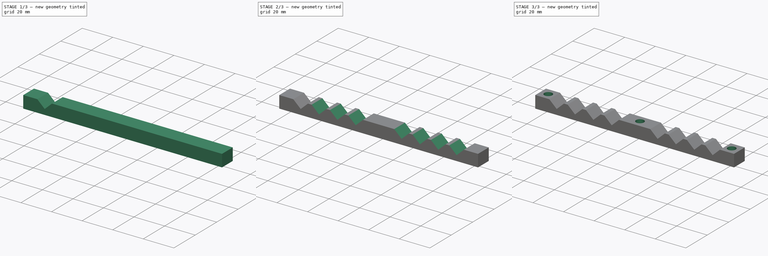
[diagram: build sequence overview — one tinted view per stage of 3, left to right]
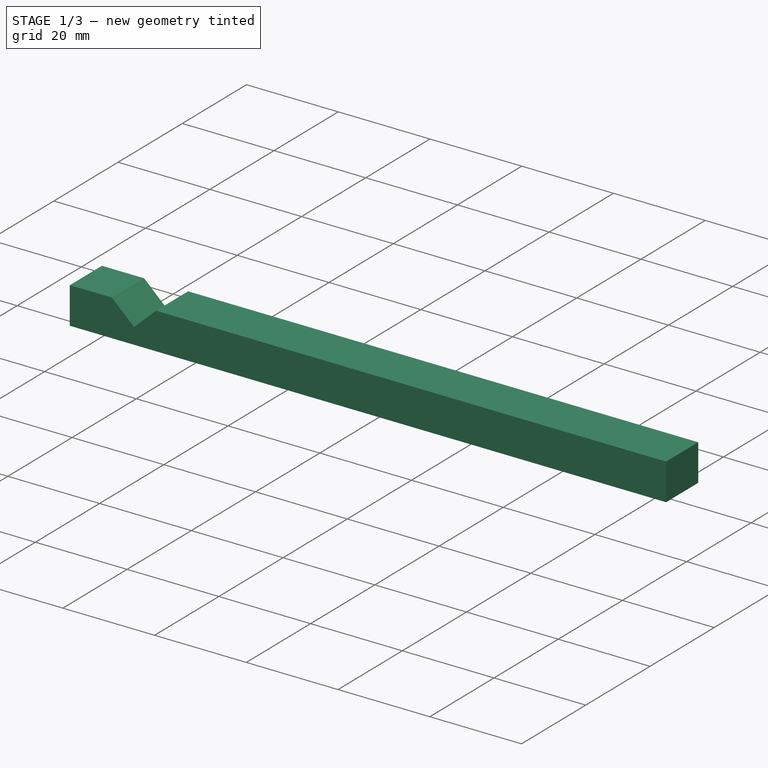
[diagram: stage 1 of 3 — iso view after this stage's code; geometry added in this stage tinted green]
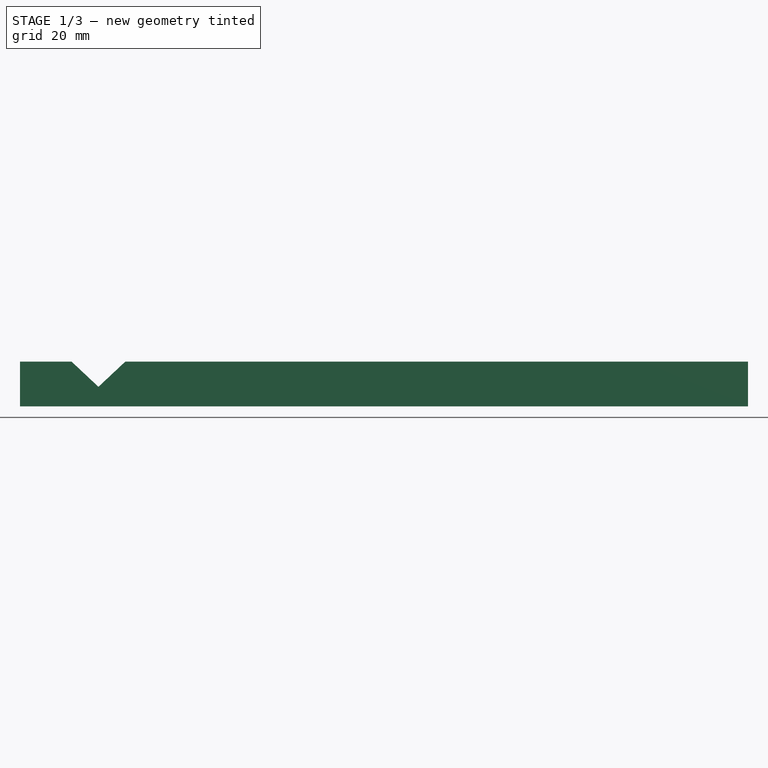
[diagram: stage 1 of 3 — front view after this stage's code; geometry added in this stage tinted green]
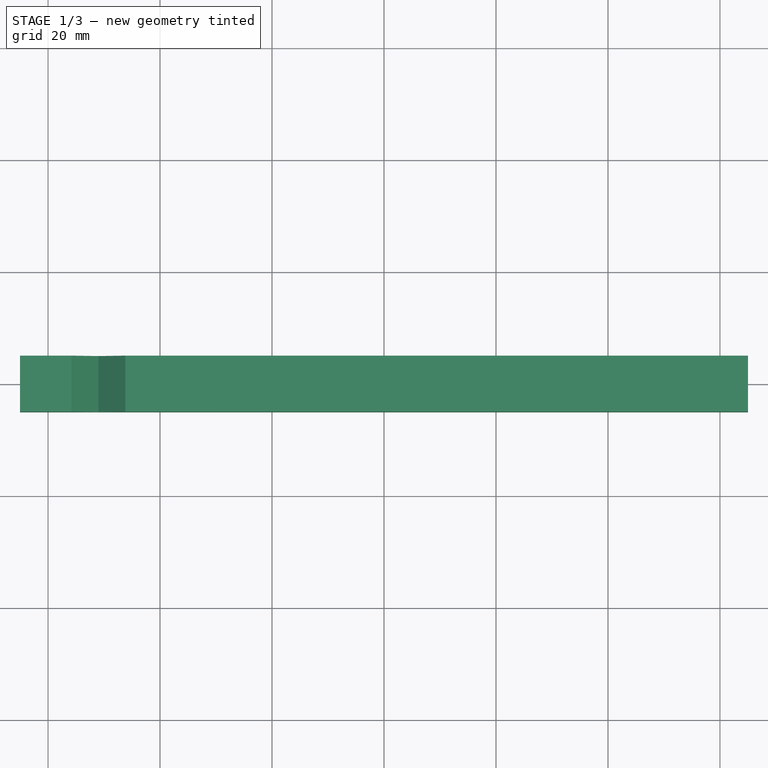
[diagram: stage 1 of 3 — top view after this stage's code; geometry added in this stage tinted green]
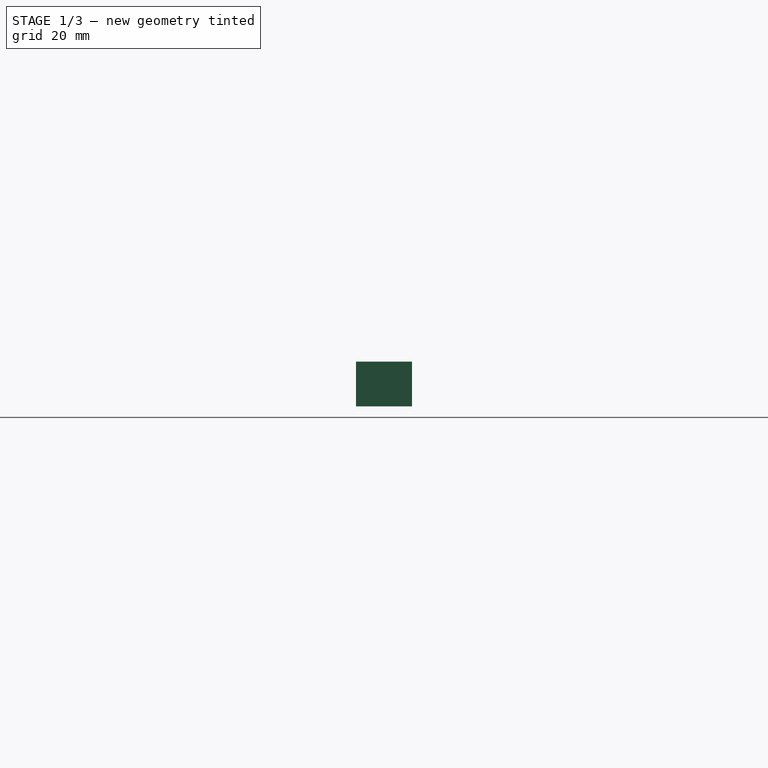
[diagram: stage 1 of 3 — right view after this stage's code; geometry added in this stage tinted green]
FCSTD DOCUMENT
Label: ElectronicEnclosureStrainRelief
objects: Sketcher::SketchObject×3, PartDesign::Pocket×2, PartDesign::LinearPattern×2, PartDesign::Pad×1, PartDesign::Mirrored×1, PartDesign::MultiTransform×1
note: 13 computed .brp shape members not serialized (recipe doc carries the construction recipe); baked Part::Feature solids carry a one-line shape summary decoded from their .brp

FEATURE [Sketcher::SketchObject] Sketch
  sketch-geometry (4):
    g0: LineSegment StartX=-65 StartY=-5 StartZ=0 EndX=65 EndY=-5 EndZ=0
    g1: LineSegment StartX=65 StartY=-5 StartZ=0 EndX=65 EndY=5 EndZ=0
    g2: LineSegment StartX=65 StartY=5 StartZ=0 EndX=-65 EndY=5 EndZ=0
    g3: LineSegment StartX=-65 StartY=5 StartZ=0 EndX=-65 EndY=-5 EndZ=0
  constraints (12):
    c: Coincident(g0,g1)
    c: Coincident(g1,g2)
    c: Coincident(g2,g3)
    c: Coincident(g3,g0)
    c: Horizontal(g0)
    c: Horizontal(g2)
    c: Vertical(g1)
    c: Vertical(g3)
    c: Symmetric(g2,g1,g-2)
    c: DistanceX(g2) = -130
    c: DistanceY(g1) = 10
    c: Symmetric(g0,g2,g-1)
FEATURE [PartDesign::Pad] Pad
  Length = 8
  Length2 = 100
  Sketch = -> Sketch
  Type = 0
FEATURE [Sketcher::SketchObject] Sketch001
  ExternalGeometry = -> [Pad]
  Placement = pos=(0,-5,0) rot=(1,0,0;1.5708rad)
  Support = -> Pad [Face1]
  sketch-geometry (3):
    g0: LineSegment StartX=-55.8 StartY=8 StartZ=0 EndX=-51 EndY=3.5 EndZ=0
    g1: LineSegment StartX=-51 StartY=3.5 StartZ=0 EndX=-46.2 EndY=8 EndZ=0
    g2: LineSegment StartX=-46.2 StartY=8 StartZ=0 EndX=-55.8 EndY=8 EndZ=0
  constraints (9):
    c: Coincident(g0,g1)
    c: Coincident(g1,g2)
    c: Coincident(g2,g0)
    c: Horizontal(g2)
    c: Equal(g0,g1)
    c: DistanceX(g2) = -9.6
    c: DistanceY(g0) = -4.5
    c: DistanceX(g0) = -51
    c: PointOnObject(g-3,g2)
FEATURE [PartDesign::Pocket] Pocket
  Length = 5
  Sketch = -> Sketch001
  Type = 1
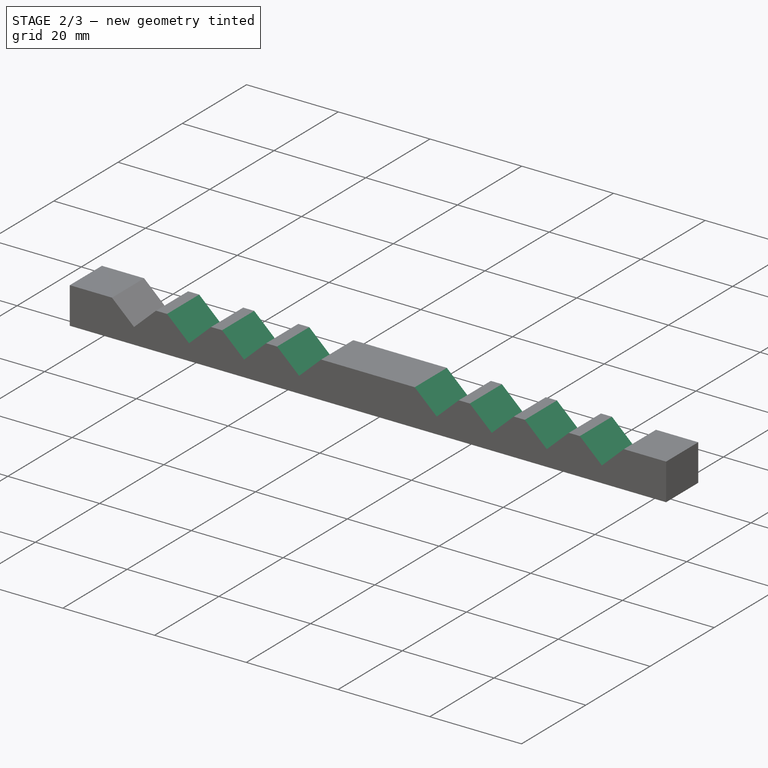
[diagram: stage 2 of 3 — iso view after this stage's code; geometry added in this stage tinted green]
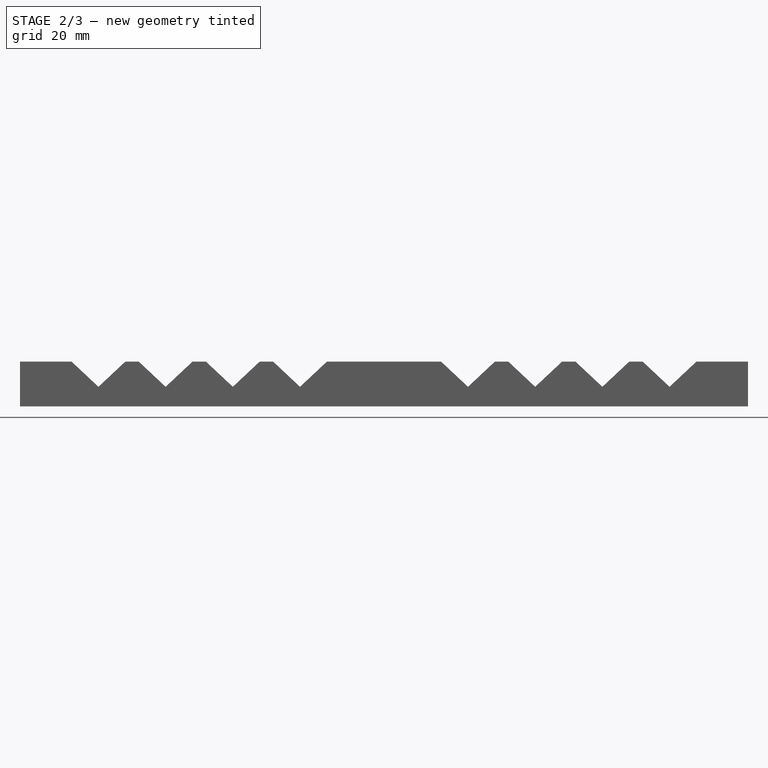
[diagram: stage 2 of 3 — front view after this stage's code; geometry added in this stage tinted green]
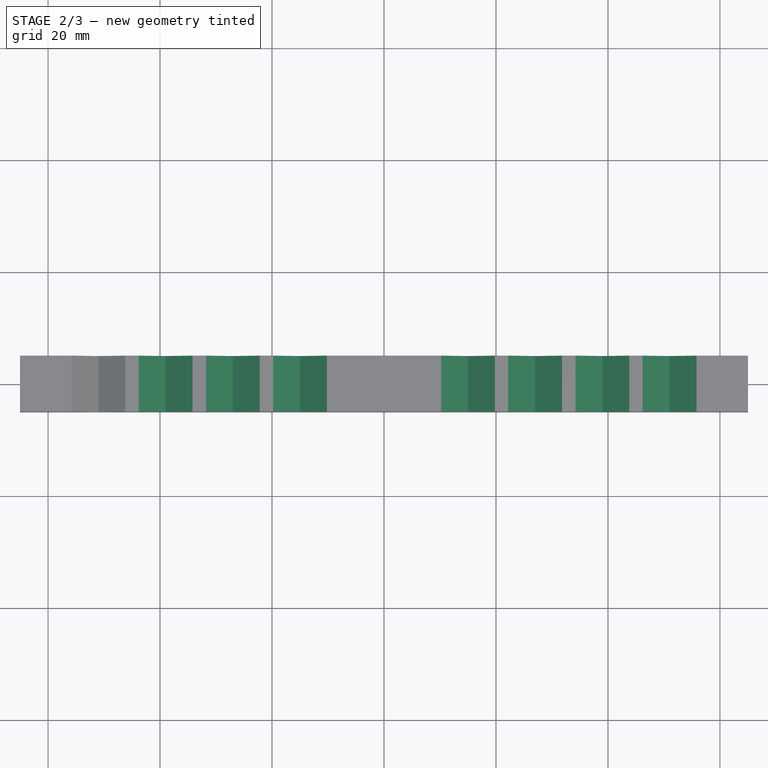
[diagram: stage 2 of 3 — top view after this stage's code; geometry added in this stage tinted green]
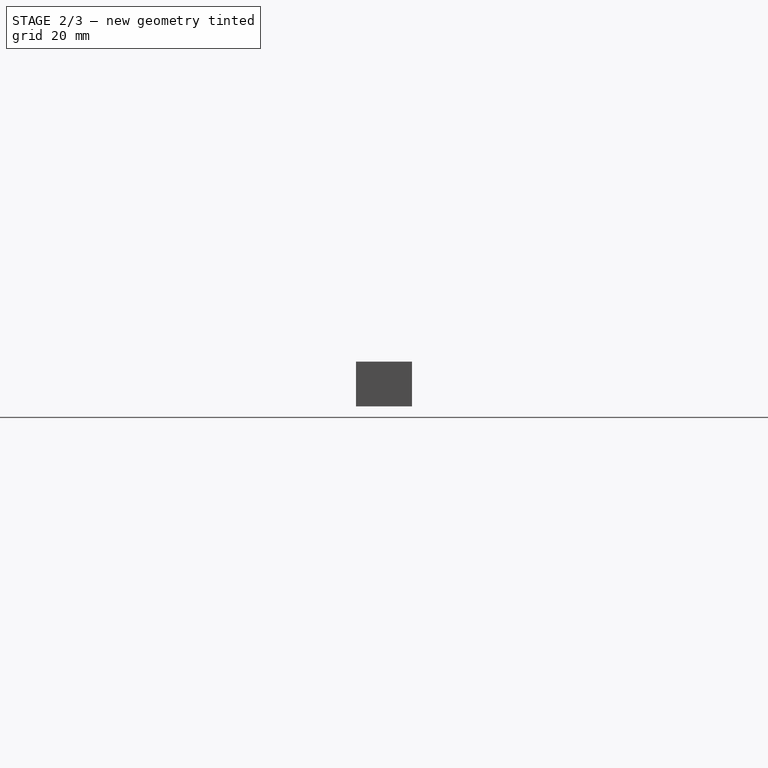
[diagram: stage 2 of 3 — right view after this stage's code; geometry added in this stage tinted green]
FEATURE [PartDesign::LinearPattern] LinearPattern
  Length = 36
  Occurrences = 4
  StdDirection = X
FEATURE [PartDesign::Mirrored] Mirrored
  StdMirrorPlane = YZ
FEATURE [PartDesign::MultiTransform] MultiTransform
  Originals = -> [Pocket]
  Transformations = -> [LinearPattern,Mirrored]
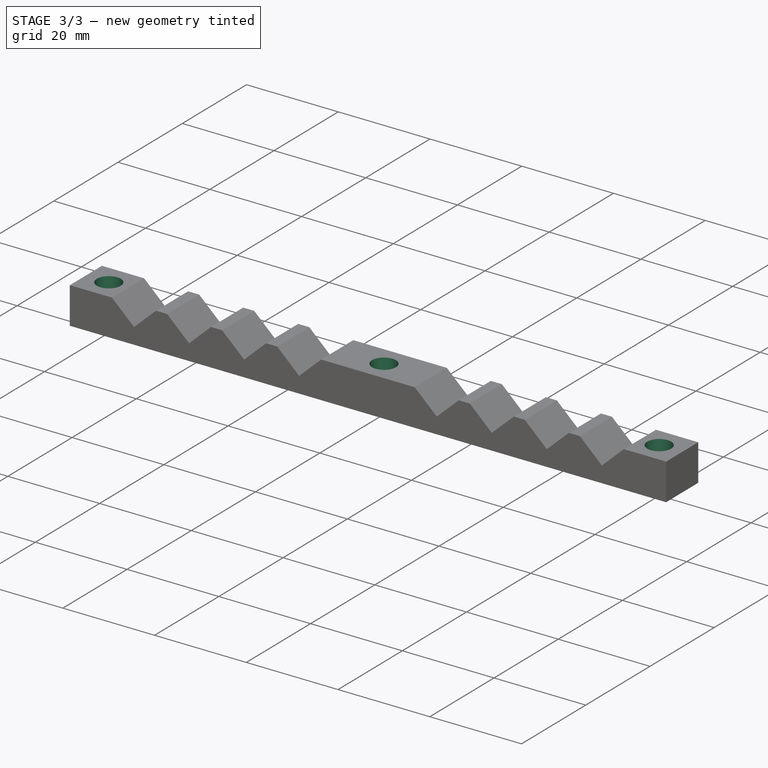
[diagram: stage 3 of 3 — iso view after this stage's code; geometry added in this stage tinted green]
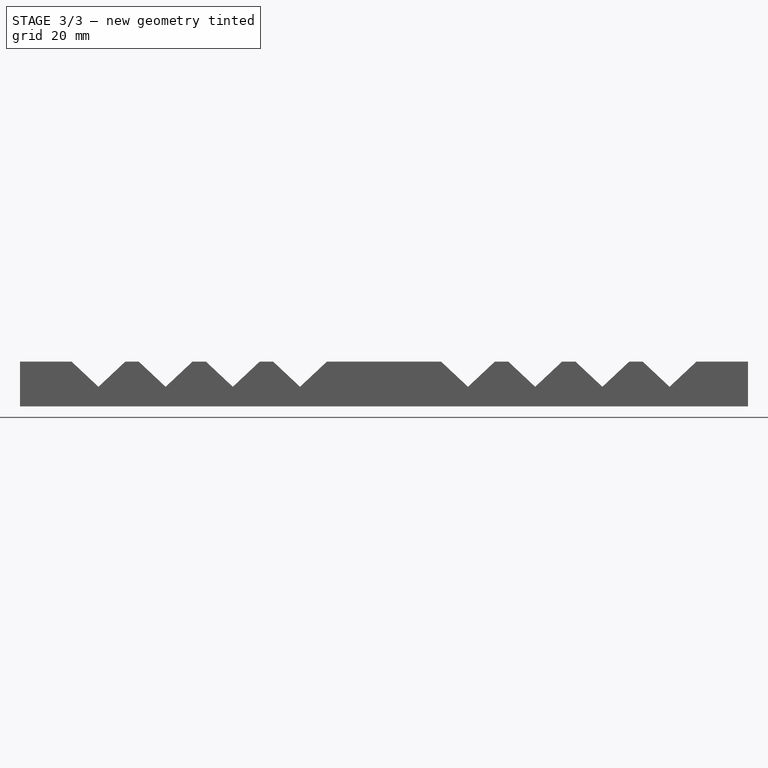
[diagram: stage 3 of 3 — front view after this stage's code; geometry added in this stage tinted green]
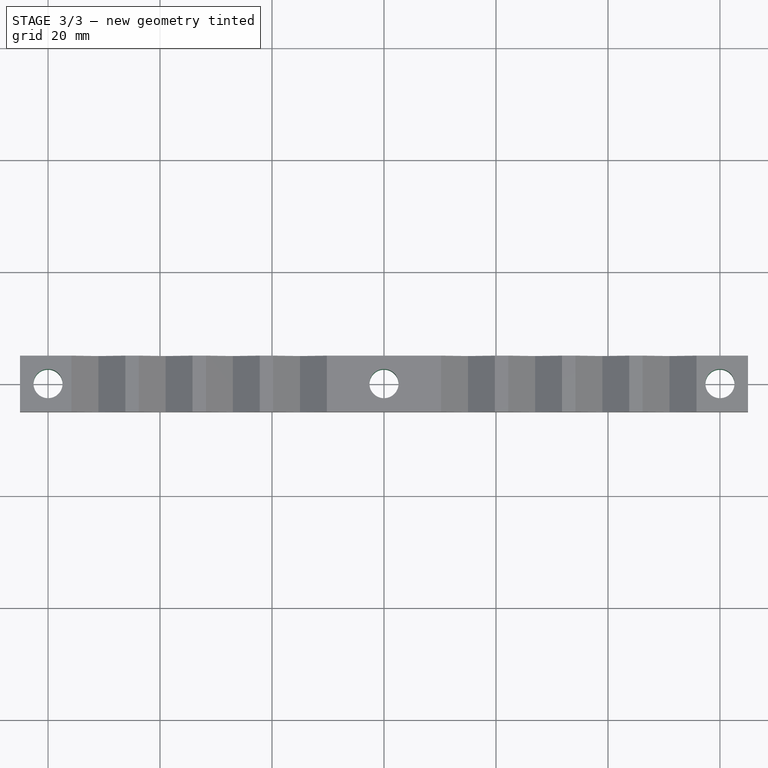
[diagram: stage 3 of 3 — top view after this stage's code; geometry added in this stage tinted green]
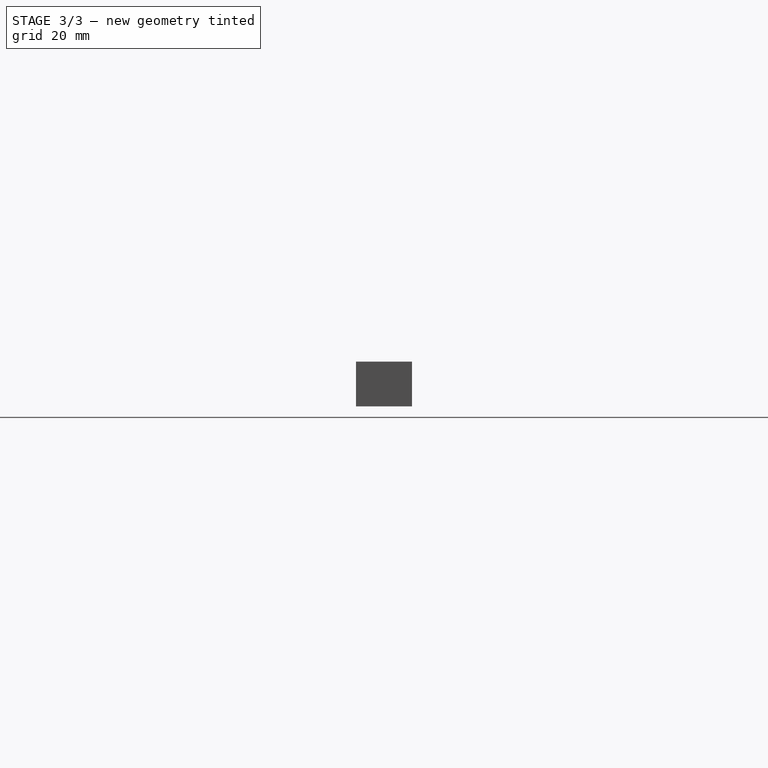
[diagram: stage 3 of 3 — right view after this stage's code; geometry added in this stage tinted green]
FEATURE [Sketcher::SketchObject] Sketch002
  ExternalGeometry = -> [MultiTransform]
  Placement = pos=(0,0,8) rot=(0,0,1;0rad)
  Support = -> MultiTransform [Face29]
  sketch-geometry (1):
    g0: Circle CenterX=-60 CenterY=0 CenterZ=0 NormalX=0 NormalY=0 NormalZ=1 Radius=2.6
  constraints (3):
    c: PointOnObject(g0,g-1)
    c: Radius(g0) = 2.6
    c: DistanceX(g-3,g0) = 5
FEATURE [PartDesign::Pocket] Pocket001
  Length = 5
  Sketch = -> Sketch002
  Type = 1
FEATURE [PartDesign::LinearPattern] LinearPattern001
  Direction = -> Pocket001 [Edge5]
  Length = 120
  Occurrences = 3
  Originals = -> [Pocket001]
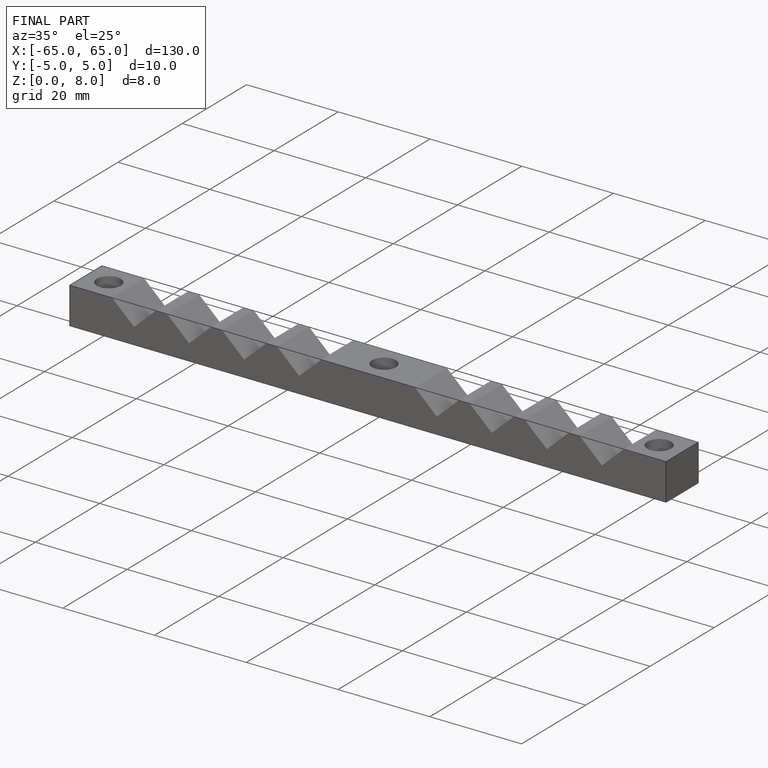
[diagram: finished part — iso view with bounding-box wireframe]
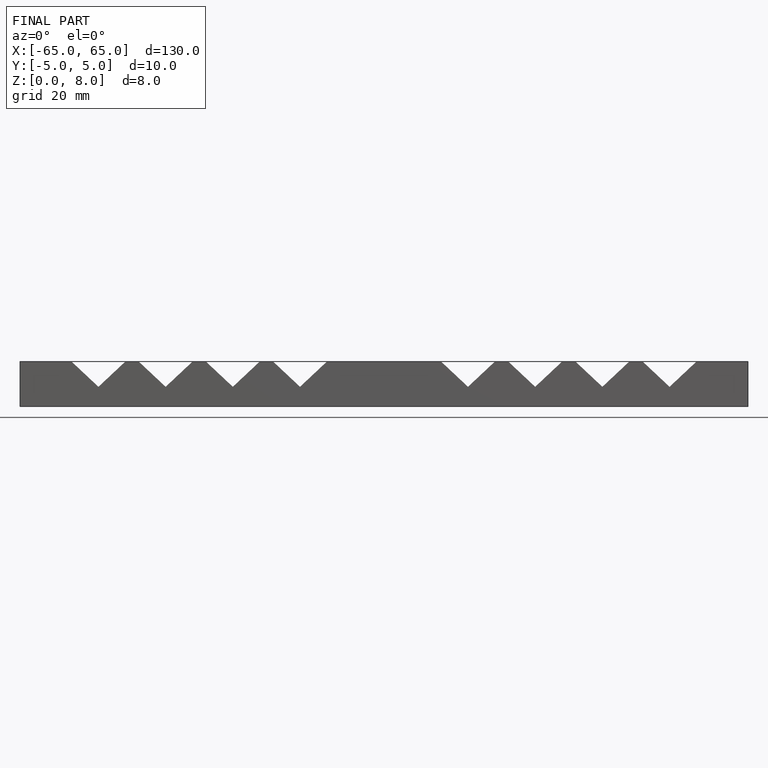
[diagram: finished part — front view with bounding-box wireframe]
